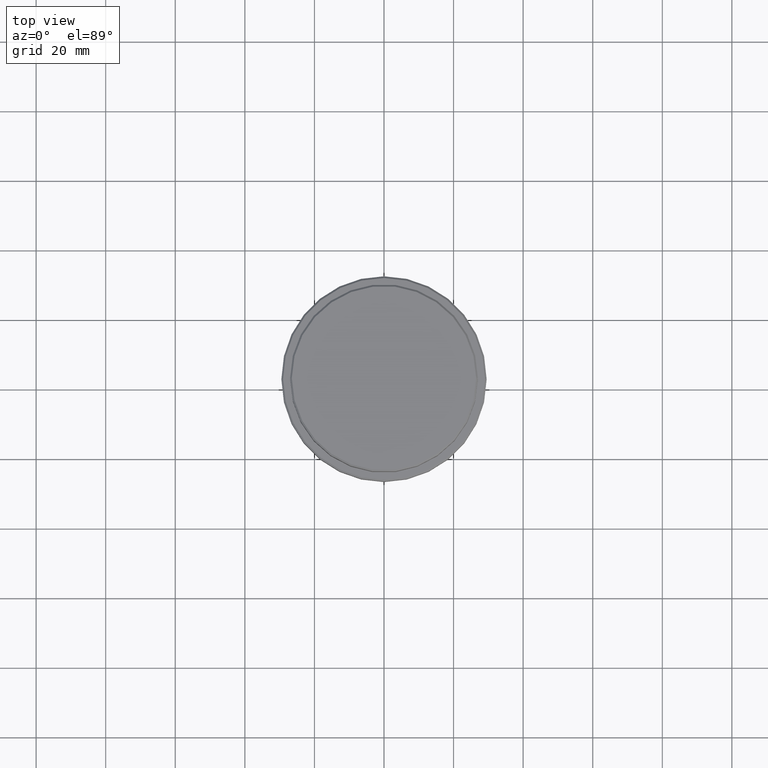
[diagram: clean part render]
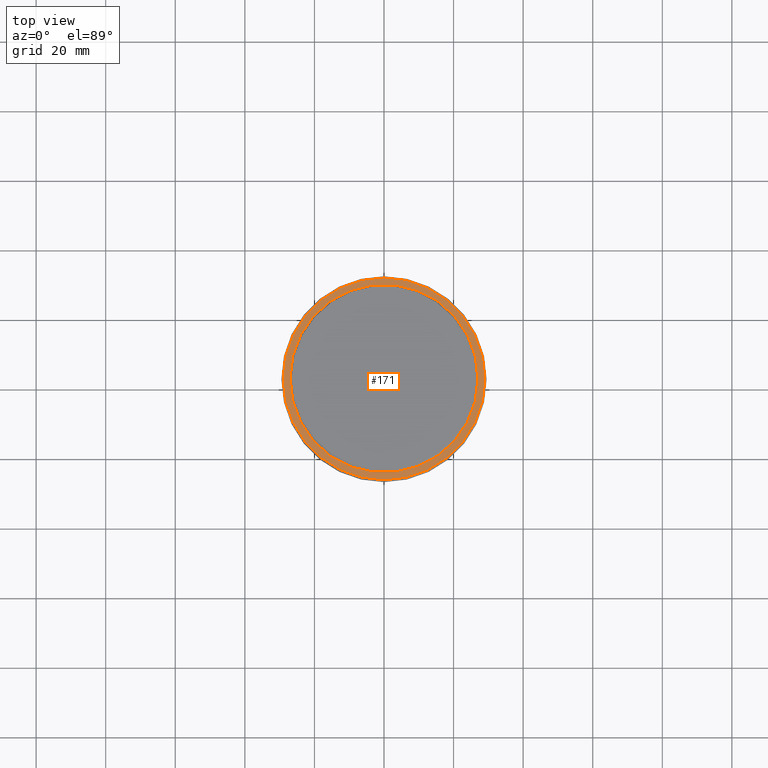
[diagram: same view with one face highlighted and labeled with its STEP entity id]
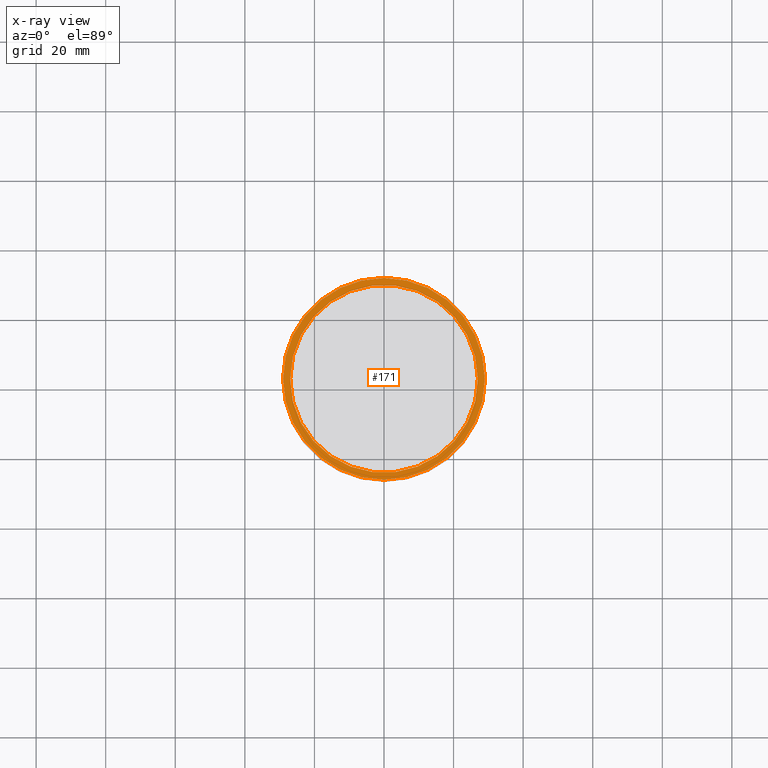
[diagram: x-ray of the same camera — body ghosted, the highlighted face saturated]
A machine part, top view. The second image highlights one B-rep face of the part: STEP entity #171.
The next image is the same camera in x-ray: the body ghosted, the highlighted face saturated — about 0% of this face is hidden behind the body in this view.
In plain terms, the highlighted planar face has unit normal (0, -0, 1).
Its self-contained STEP definition (entity closure, byte-faithful):
#21 = DIRECTION ( 'NONE',  ( 0.000000000000000000, -0.000000000000000000, 1.000000000000000000 ) ) ;
#32 = CIRCLE ( 'NONE', #658, 28.99999999999999645 ) ;
#171 = ADVANCED_FACE ( 'NONE', ( #802, #234 ), #914, .T. ) ;
#213 = EDGE_CURVE ( 'NONE', #1399, #1206, #419, .T. ) ;
#214 = CIRCLE ( 'NONE', #586, 28.99999999999999645 ) ;
#234 = FACE_BOUND ( 'NONE', #1136, .T. ) ;
#238 = CIRCLE ( 'NONE', #1337, 26.99999999999999645 ) ;
#270 = ORIENTED_EDGE ( 'NONE', *, *, #852, .T. ) ;
#272 = DIRECTION ( 'NONE',  ( -0.000000000000000000, -0.000000000000000000, 1.000000000000000000 ) ) ;
#307 = AXIS2_PLACEMENT_3D ( 'NONE', #584, #21, #365 ) ;
#359 = DIRECTION ( 'NONE',  ( 1.000000000000000000, 0.000000000000000000, 0.000000000000000000 ) ) ;
#365 = DIRECTION ( 'NONE',  ( 1.000000000000000000, 0.000000000000000000, 0.000000000000000000 ) ) ;
#419 = CIRCLE ( 'NONE', #1215, 26.99999999999999645 ) ;
#424 = CARTESIAN_POINT ( 'NONE',  ( 0.000000000000000000, 0.000000000000000000, -12.00000000000000355 ) ) ;
#490 = CARTESIAN_POINT ( 'NONE',  ( -26.99999999999999645, 3.306546357697853339E-15, -12.00000000000000355 ) ) ;
#545 = DIRECTION ( 'NONE',  ( 1.000000000000000000, 0.000000000000000000, 0.000000000000000000 ) ) ;
#557 = EDGE_CURVE ( 'NONE', #1178, #716, #32, .T. ) ;
#559 = CARTESIAN_POINT ( 'NONE',  ( 0.000000000000000000, 0.000000000000000000, -12.00000000000000355 ) ) ;
#584 = CARTESIAN_POINT ( 'NONE',  ( 0.000000000000000000, 26.49999999999999645, -12.00000000000000355 ) ) ;
#586 = AXIS2_PLACEMENT_3D ( 'NONE', #1251, #272, #1039 ) ;
#609 = CARTESIAN_POINT ( 'NONE',  ( -28.99999999999999645, 0.000000000000000000, -12.00000000000000355 ) ) ;
#623 = ORIENTED_EDGE ( 'NONE', *, *, #213, .T. ) ;
#658 = AXIS2_PLACEMENT_3D ( 'NONE', #424, #868, #545 ) ;
#697 = DIRECTION ( 'NONE',  ( 0.000000000000000000, 0.000000000000000000, -1.000000000000000000 ) ) ;
#716 = VERTEX_POINT ( 'NONE', #787 ) ;
#787 = CARTESIAN_POINT ( 'NONE',  ( 28.99999999999999645, 3.582091887506007817E-15, -12.00000000000000355 ) ) ;
#802 = FACE_OUTER_BOUND ( 'NONE', #1169, .T. ) ;
#852 = EDGE_CURVE ( 'NONE', #716, #1178, #214, .T. ) ;
#868 = DIRECTION ( 'NONE',  ( -0.000000000000000000, -0.000000000000000000, 1.000000000000000000 ) ) ;
#885 = ORIENTED_EDGE ( 'NONE', *, *, #557, .T. ) ;
#914 = PLANE ( 'NONE',  #307 ) ;
#918 = CARTESIAN_POINT ( 'NONE',  ( 0.000000000000000000, 0.000000000000000000, -12.00000000000000355 ) ) ;
#967 = CARTESIAN_POINT ( 'NONE',  ( 26.99999999999999645, 0.000000000000000000, -12.00000000000000355 ) ) ;
#1039 = DIRECTION ( 'NONE',  ( 1.000000000000000000, 0.000000000000000000, 0.000000000000000000 ) ) ;
#1114 = EDGE_CURVE ( 'NONE', #1206, #1399, #238, .T. ) ;
#1136 = EDGE_LOOP ( 'NONE', ( #623, #1154 ) ) ;
#1154 = ORIENTED_EDGE ( 'NONE', *, *, #1114, .T. ) ;
#1169 = EDGE_LOOP ( 'NONE', ( #885, #270 ) ) ;
#1178 = VERTEX_POINT ( 'NONE', #609 ) ;
#1206 = VERTEX_POINT ( 'NONE', #490 ) ;
#1215 = AXIS2_PLACEMENT_3D ( 'NONE', #559, #1222, #359 ) ;
#1222 = DIRECTION ( 'NONE',  ( 0.000000000000000000, 0.000000000000000000, -1.000000000000000000 ) ) ;
#1251 = CARTESIAN_POINT ( 'NONE',  ( 0.000000000000000000, 0.000000000000000000, -12.00000000000000355 ) ) ;
#1337 = AXIS2_PLACEMENT_3D ( 'NONE', #918, #697, #1350 ) ;
#1350 = DIRECTION ( 'NONE',  ( 1.000000000000000000, 0.000000000000000000, 0.000000000000000000 ) ) ;
#1399 = VERTEX_POINT ( 'NONE', #967 ) ;